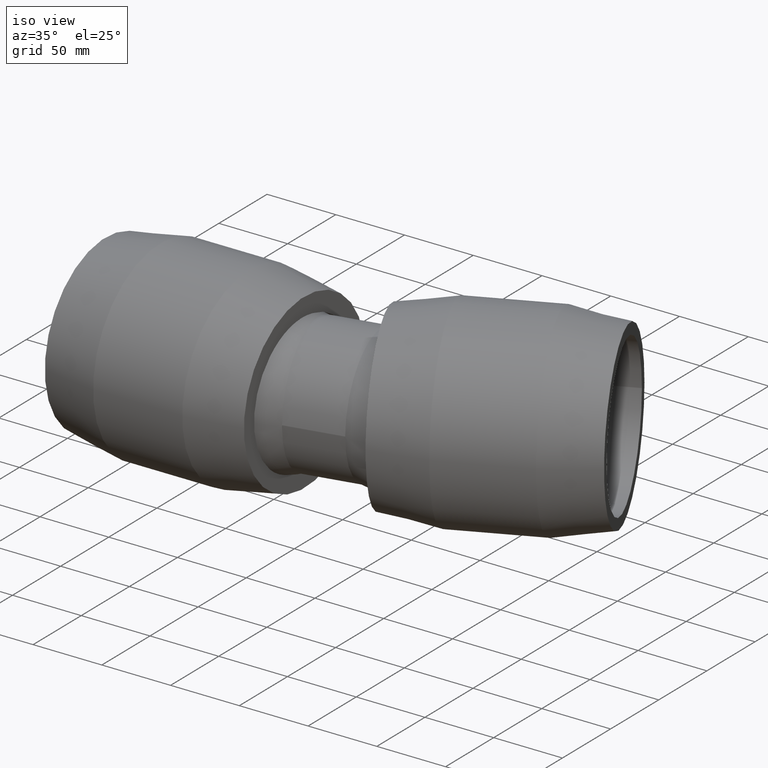
[diagram: clean part render]
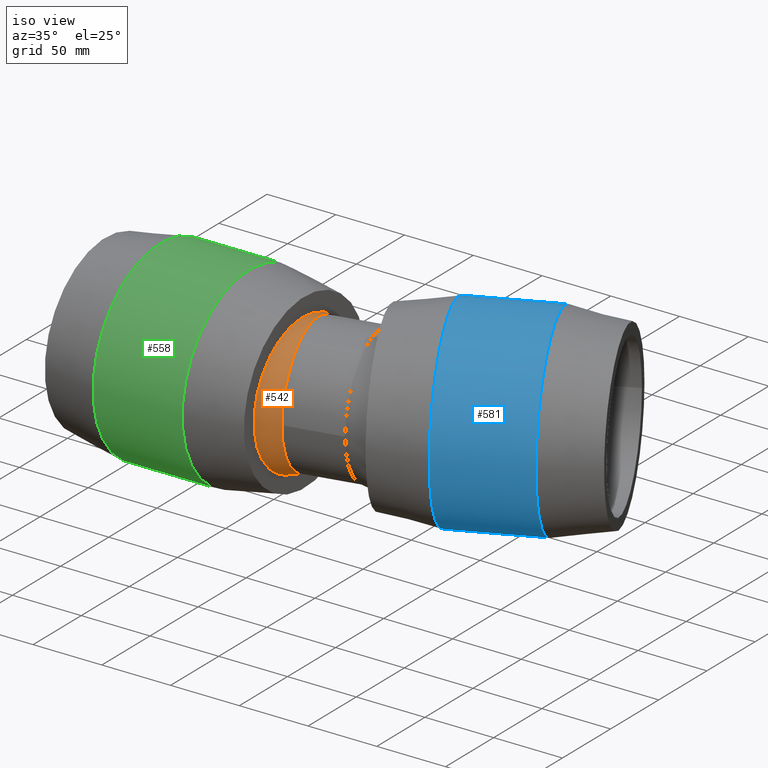
[diagram: same view with three faces highlighted in distinct colors, each labeled with its STEP entity id]
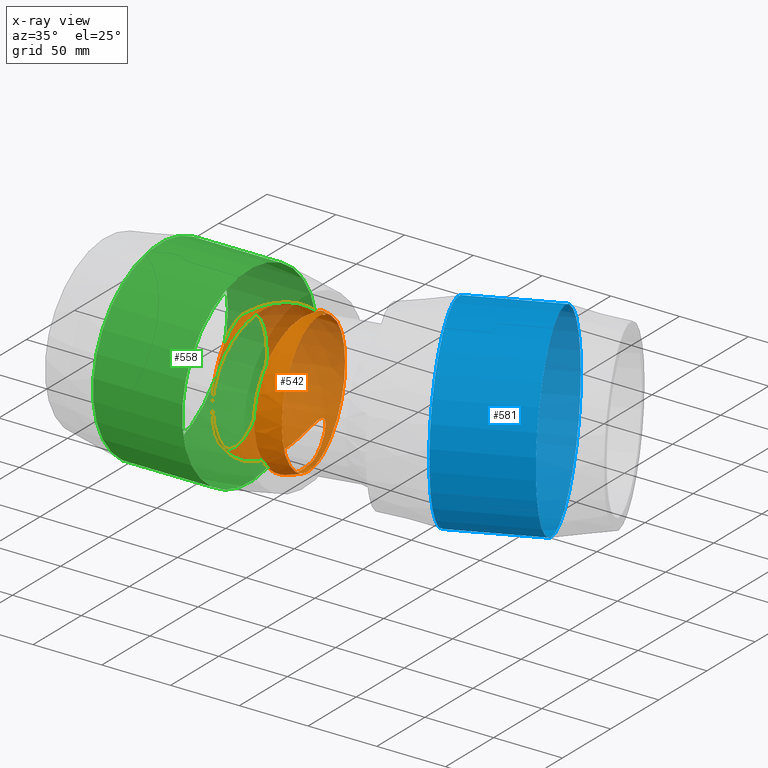
[diagram: x-ray of the same camera — body ghosted, the three highlighted faces saturated]
A machine part, iso view with three faces highlighted in distinct colors.
The next image is the same camera in x-ray (body ghosted, the three faces saturated) — at least one of them is partly hidden behind the body in this view.
Their STEP definitions:

[orange] entity #542 — the highlighted spherical surface has radius 51.344 mm.
#64=FACE_BOUND('',#166,.T.);
#114=FACE_OUTER_BOUND('',#165,.T.);
#165=EDGE_LOOP('',(#432,#433,#434,#435));
#166=EDGE_LOOP('',(#436));
#265=B_SPLINE_CURVE_WITH_KNOTS('',3,(#1027,#1028,#1029,#1030,#1031,#1032,
#1033,#1034,#1035,#1036,#1037,#1038,#1039,#1040,#1041,#1042,#1043,#1044,
#1045,#1046,#1047,#1048,#1049,#1050,#1051,#1052,#1053,#1054,#1055,#1056,
#1057,#1058,#1059,#1060,#1061,#1062,#1063,#1064,#1065,#1066,#1067,#1068,
#1069,#1070,#1071,#1072,#1073,#1074,#1075,#1076,#1077,#1078,#1079,#1080,
#1081,#1082,#1083,#1084,#1085,#1086,#1087,#1088,#1089),.UNSPECIFIED.,.F.,
 .F.,(4,2,2,2,2,2,2,2,2,2,3,2,2,2,2,2,2,2,2,2,2,2,2,2,2,2,2,2,2,2,4),(-3.30851037801907,
-3.28968480181947,-2.40979252966525,-1.6720922541475,-0.934391978629748,
-0.680389936424923,-0.426387894220106,-0.233471961970231,-0.116735980985119,
-0.0583679904925631,0.,0.0583679904925535,0.116735980985107,0.233471961970214,
0.426387894220085,0.680389936424906,0.934391978629727,1.67209225414748,
2.40979252966524,3.28968480181945,4.16957707397367,5.04946934612788,5.9293616182821,
6.63560045389003,7.34183928949796,8.04807812510589,8.75431696071383,9.4548744696161,
10.1554319785184,10.8559894874207,11.5565469963229),.UNSPECIFIED.);
#266=B_SPLINE_CURVE_WITH_KNOTS('',3,(#1092,#1093,#1094,#1095,#1096,#1097,
#1098,#1099,#1100,#1101,#1102,#1103,#1104,#1105,#1106,#1107,#1108,#1109,
#1110,#1111,#1112,#1113,#1114,#1115,#1116,#1117,#1118,#1119,#1120,#1121,
#1122,#1123,#1124,#1125,#1126,#1127,#1128,#1129,#1130,#1131,#1132,#1133,
#1134,#1135,#1136,#1137,#1138,#1139,#1140,#1141,#1142,#1143,#1144,#1145,
#1146,#1147,#1148,#1149,#1150,#1151,#1152,#1153),.UNSPECIFIED.,.F.,.F.,
(4,2,2,2,2,2,2,2,2,2,2,2,2,2,2,2,2,2,2,2,2,2,2,2,2,2,2,2,2,2,4),(11.5565469963229,
12.2571045052252,12.9576620141275,13.6582195230298,14.358777031932,15.06501586754,
15.7712547031479,16.4774935387558,17.1837323743638,18.063624646518,18.9435169186722,
19.8234091908264,20.7033014629806,21.4410017384984,22.1787020140161,22.4327040562209,
22.6867060984258,22.8796220306757,22.9963580116607,23.0547260021533,23.1130939926458,
23.1714619831384,23.2298299736309,23.3465659546161,23.5394818868659,23.7934839290708,
24.0474859712756,24.7851862467933,25.5228865223111,26.4027787944653,26.4216043706735),
 .UNSPECIFIED.);
#274=CIRCLE('',#598,41.681967453828);
#275=CIRCLE('',#599,49.9835908268743);
#276=CIRCLE('',#600,48.161967453828);
#323=VERTEX_POINT('',#1024);
#324=VERTEX_POINT('',#1026);
#325=VERTEX_POINT('',#1090);
#326=VERTEX_POINT('',#1154);
#376=EDGE_CURVE('',#323,#323,#274,.T.);
#377=EDGE_CURVE('',#324,#323,#265,.T.);
#378=EDGE_CURVE('',#325,#324,#275,.T.);
#379=EDGE_CURVE('',#323,#325,#266,.T.);
#380=EDGE_CURVE('',#326,#326,#276,.T.);
#432=ORIENTED_EDGE('',*,*,#376,.F.);
#433=ORIENTED_EDGE('',*,*,#377,.F.);
#434=ORIENTED_EDGE('',*,*,#378,.F.);
#435=ORIENTED_EDGE('',*,*,#379,.F.);
#436=ORIENTED_EDGE('',*,*,#380,.T.);
#540=SPHERICAL_SURFACE('',#597,51.3440263239376);
#542=ADVANCED_FACE('',(#114,#64),#540,.T.);
#597=AXIS2_PLACEMENT_3D('',#1023,#701,#702);
#598=AXIS2_PLACEMENT_3D('',#1025,#703,#704);
#599=AXIS2_PLACEMENT_3D('',#1091,#705,#706);
#600=AXIS2_PLACEMENT_3D('',#1155,#707,#708);
#701=DIRECTION('center_axis',(0.,0.,1.));
#702=DIRECTION('ref_axis',(1.,0.,0.));
#703=DIRECTION('center_axis',(-0.978147600733806,-0.20791169081776,0.));
#704=DIRECTION('ref_axis',(0.20791169081776,-0.978147600733806,0.));
#705=DIRECTION('center_axis',(-1.,-1.83697019872103E-16,0.));
#706=DIRECTION('ref_axis',(0.,0.,1.));
#707=DIRECTION('center_axis',(-0.978147600733806,-0.20791169081776,0.));
#708=DIRECTION('ref_axis',(0.20791169081776,-0.978147600733806,0.));
#1023=CARTESIAN_POINT('Origin',(60.6590593560478,-2.49561397405026,0.));
#1024=CARTESIAN_POINT('',(40.,-49.5,0.));
#1025=CARTESIAN_POINT('Origin',(31.3338316700638,-8.72888354117357,0.));
#1026=CARTESIAN_POINT('',(72.4,8.39097377968063,48.7836197819382));
#1027=CARTESIAN_POINT('Ctrl Pts',(72.4,8.39097377968063,48.7836197819382));
#1028=CARTESIAN_POINT('Ctrl Pts',(72.3864500201985,8.45472142263795,48.7726549375301));
#1029=CARTESIAN_POINT('Ctrl Pts',(72.3728863221512,8.51842324838326,48.7615693236608));
#1030=CARTESIAN_POINT('Ctrl Pts',(71.7247144296909,11.5572638656852,48.2266078084189));
#1031=CARTESIAN_POINT('Ctrl Pts',(71.0601398841781,14.4295187630104,47.4359439953391));
#1032=CARTESIAN_POINT('Ctrl Pts',(69.79639182757,19.3483973782541,45.6245991545693));
#1033=CARTESIAN_POINT('Ctrl Pts',(69.1317114648829,21.7336316149281,44.5488383720133));
#1034=CARTESIAN_POINT('Ctrl Pts',(67.6723950436625,26.2613695283844,42.0391507792162));
#1035=CARTESIAN_POINT('Ctrl Pts',(66.8784475342787,28.4040888636781,40.6052127183003));
#1036=CARTESIAN_POINT('Ctrl Pts',(65.7368695430582,30.8605992055764,38.7105254568418));
#1037=CARTESIAN_POINT('Ctrl Pts',(65.3992919767922,31.5349089440416,38.164461323344));
#1038=CARTESIAN_POINT('Ctrl Pts',(64.6596322785791,32.8302257801769,37.0560773076257));
#1039=CARTESIAN_POINT('Ctrl Pts',(64.2569739163476,33.4511228403933,36.4940134588498));
#1040=CARTESIAN_POINT('Ctrl Pts',(63.5183622155816,34.3917349163212,35.6057640761962));
#1041=CARTESIAN_POINT('Ctrl Pts',(63.0977221583261,34.8535641802537,35.1527292167637));
#1042=CARTESIAN_POINT('Ctrl Pts',(62.42012509077,35.4010782588731,34.5991303179625));
#1043=CARTESIAN_POINT('Ctrl Pts',(62.1139442933544,35.6087687376838,34.3847977815056));
#1044=CARTESIAN_POINT('Ctrl Pts',(61.600376308243,35.8377098244398,34.1455814995889));
#1045=CARTESIAN_POINT('Ctrl Pts',(61.4198709340975,35.9003764284018,34.0795668058151));
#1046=CARTESIAN_POINT('Ctrl Pts',(61.0465271717174,35.9862677079335,33.988857553912));
#1047=CARTESIAN_POINT('Ctrl Pts',(60.8536193243563,36.0093652132489,33.9643285954376));
#1048=CARTESIAN_POINT('Ctrl Pts',(60.6590593560477,36.0093652132489,33.9643285954376));
#1049=CARTESIAN_POINT('Ctrl Pts',(60.4644993877392,36.0093652132489,33.9643285954376));
#1050=CARTESIAN_POINT('Ctrl Pts',(60.2715915403781,35.9862677079336,33.9888575539119));
#1051=CARTESIAN_POINT('Ctrl Pts',(59.898247777998,35.9003764284018,34.0795668058151));
#1052=CARTESIAN_POINT('Ctrl Pts',(59.7177424038525,35.8377098244399,34.1455814995888));
#1053=CARTESIAN_POINT('Ctrl Pts',(59.2041744187412,35.6087687376839,34.3847977815055));
#1054=CARTESIAN_POINT('Ctrl Pts',(58.8979936213257,35.401078258873,34.5991303179625));
#1055=CARTESIAN_POINT('Ctrl Pts',(58.2203965537696,34.8535641802537,35.1527292167637));
#1056=CARTESIAN_POINT('Ctrl Pts',(57.7997564965141,34.3917349163212,35.6057640761962));
#1057=CARTESIAN_POINT('Ctrl Pts',(57.0611447957481,33.4511228403933,36.4940134588498));
#1058=CARTESIAN_POINT('Ctrl Pts',(56.6584864335165,32.8302257801769,37.0560773076257));
#1059=CARTESIAN_POINT('Ctrl Pts',(55.9188267353034,31.5349089440416,38.1644613233439));
#1060=CARTESIAN_POINT('Ctrl Pts',(55.5812491690375,30.8605992055764,38.7105254568418));
#1061=CARTESIAN_POINT('Ctrl Pts',(54.4396711778169,28.4040888636781,40.6052127183003));
#1062=CARTESIAN_POINT('Ctrl Pts',(53.6457236684333,26.2613695283844,42.0391507792162));
#1063=CARTESIAN_POINT('Ctrl Pts',(52.1864072472128,21.7336316149281,44.5488383720134));
#1064=CARTESIAN_POINT('Ctrl Pts',(51.5217268845257,19.348397378254,45.6245991545693));
#1065=CARTESIAN_POINT('Ctrl Pts',(50.2579788279176,14.4295187630104,47.4359439953391));
#1066=CARTESIAN_POINT('Ctrl Pts',(49.5934042824047,11.5572638656852,48.2266078084189));
#1067=CARTESIAN_POINT('Ctrl Pts',(48.3242152032114,5.60689272223896,49.2741190023348));
#1068=CARTESIAN_POINT('Ctrl Pts',(47.7194865517919,2.52883156474508,49.5311410344302));
#1069=CARTESIAN_POINT('Ctrl Pts',(46.5819694705229,-3.62838690513261,49.4627526058047));
#1070=CARTESIAN_POINT('Ctrl Pts',(46.0482844699517,-6.71184151201413,49.1373100014883));
#1071=CARTESIAN_POINT('Ctrl Pts',(45.0614482098478,-12.6844662209359,47.9440128486289));
#1072=CARTESIAN_POINT('Ctrl Pts',(44.6082105455073,-15.5735871718788,47.0759837554859));
#1073=CARTESIAN_POINT('Ctrl Pts',(43.8705047262049,-20.4392035442235,45.1433604354843));
#1074=CARTESIAN_POINT('Ctrl Pts',(43.5474846875478,-22.6358644806027,44.0907727555351));
#1075=CARTESIAN_POINT('Ctrl Pts',(42.9333898874893,-26.9220583418136,41.6122743637325));
#1076=CARTESIAN_POINT('Ctrl Pts',(42.6422197330911,-29.0115802401123,40.1863682194818));
#1077=CARTESIAN_POINT('Ctrl Pts',(42.1050652697745,-32.947328913444,37.0282261037509));
#1078=CARTESIAN_POINT('Ctrl Pts',(41.8587525999175,-34.7954511890737,35.2944487343533));
#1079=CARTESIAN_POINT('Ctrl Pts',(41.4180460176876,-38.1543561449819,31.6333153843155));
#1080=CARTESIAN_POINT('Ctrl Pts',(41.2236105870244,-39.6651108623783,29.7059387470811));
#1081=CARTESIAN_POINT('Ctrl Pts',(40.8896450803343,-42.2884176942533,25.8334122928519));
#1082=CARTESIAN_POINT('Ctrl Pts',(40.736154070425,-43.5110097277271,23.7306912558901));
#1083=CARTESIAN_POINT('Ctrl Pts',(40.4690425860227,-45.6577003487504,19.2802508786073));
#1084=CARTESIAN_POINT('Ctrl Pts',(40.3553765519533,-46.5818075253671,16.9325384158317));
#1085=CARTESIAN_POINT('Ctrl Pts',(40.1747157351924,-48.0581597611486,12.1238996316516));
#1086=CARTESIAN_POINT('Ctrl Pts',(40.107610909225,-48.6111189136321,9.66062754443345));
#1087=CARTESIAN_POINT('Ctrl Pts',(40.0202520233377,-49.3320506998203,4.76627531343827));
#1088=CARTESIAN_POINT('Ctrl Pts',(40.,-49.5,2.33519169634092));
#1089=CARTESIAN_POINT('Ctrl Pts',(40.,-49.5,6.66133814775094E-15));
#1090=CARTESIAN_POINT('',(72.4,8.39097377968063,-48.7836197819382));
#1091=CARTESIAN_POINT('Origin',(72.4,-2.49561397405026,0.));
#1092=CARTESIAN_POINT('Ctrl Pts',(40.,-49.5,5.55111512312578E-15));
#1093=CARTESIAN_POINT('Ctrl Pts',(40.,-49.5,-2.33519169634091));
#1094=CARTESIAN_POINT('Ctrl Pts',(40.0202520233377,-49.3320506998203,-4.76627531343826));
#1095=CARTESIAN_POINT('Ctrl Pts',(40.107610909225,-48.6111189136321,-9.66062754443344));
#1096=CARTESIAN_POINT('Ctrl Pts',(40.1747157351924,-48.0581597611486,-12.1238996316516));
#1097=CARTESIAN_POINT('Ctrl Pts',(40.3553765519532,-46.5818075253671,-16.9325384158317));
#1098=CARTESIAN_POINT('Ctrl Pts',(40.4690425860227,-45.6577003487504,-19.2802508786073));
#1099=CARTESIAN_POINT('Ctrl Pts',(40.7361540704249,-43.5110097277271,-23.7306912558901));
#1100=CARTESIAN_POINT('Ctrl Pts',(40.8896450803343,-42.2884176942533,-25.8334122928519));
#1101=CARTESIAN_POINT('Ctrl Pts',(41.2236105870244,-39.6651108623783,-29.7059387470811));
#1102=CARTESIAN_POINT('Ctrl Pts',(41.4180460176876,-38.1543561449819,-31.6333153843155));
#1103=CARTESIAN_POINT('Ctrl Pts',(41.8587525999175,-34.7954511890737,-35.2944487343533));
#1104=CARTESIAN_POINT('Ctrl Pts',(42.1050652697746,-32.9473289134439,-37.0282261037509));
#1105=CARTESIAN_POINT('Ctrl Pts',(42.6422197330912,-29.0115802401122,-40.1863682194818));
#1106=CARTESIAN_POINT('Ctrl Pts',(42.9333898874893,-26.9220583418136,-41.6122743637325));
#1107=CARTESIAN_POINT('Ctrl Pts',(43.5474846875479,-22.6358644806027,-44.0907727555351));
#1108=CARTESIAN_POINT('Ctrl Pts',(43.8705047262049,-20.4392035442235,-45.1433604354843));
#1109=CARTESIAN_POINT('Ctrl Pts',(44.6082105455074,-15.5735871718788,-47.0759837554859));
#1110=CARTESIAN_POINT('Ctrl Pts',(45.0614482098477,-12.6844662209359,-47.9440128486289));
#1111=CARTESIAN_POINT('Ctrl Pts',(46.0482844699516,-6.71184151201411,-49.1373100014883));
#1112=CARTESIAN_POINT('Ctrl Pts',(46.5819694705229,-3.6283869051326,-49.4627526058047));
#1113=CARTESIAN_POINT('Ctrl Pts',(47.7194865517919,2.5288315647451,-49.5311410344302));
#1114=CARTESIAN_POINT('Ctrl Pts',(48.3242152032114,5.60689272223898,-49.2741190023348));
#1115=CARTESIAN_POINT('Ctrl Pts',(49.5934042824047,11.5572638656852,-48.2266078084189));
#1116=CARTESIAN_POINT('Ctrl Pts',(50.2579788279176,14.4295187630104,-47.4359439953391));
#1117=CARTESIAN_POINT('Ctrl Pts',(51.5217268845257,19.3483973782541,-45.6245991545693));
#1118=CARTESIAN_POINT('Ctrl Pts',(52.1864072472128,21.7336316149281,-44.5488383720134));
#1119=CARTESIAN_POINT('Ctrl Pts',(53.6457236684332,26.2613695283844,-42.0391507792162));
#1120=CARTESIAN_POINT('Ctrl Pts',(54.4396711778169,28.4040888636781,-40.6052127183003));
#1121=CARTESIAN_POINT('Ctrl Pts',(55.5812491690374,30.8605992055764,-38.7105254568418));
#1122=CARTESIAN_POINT('Ctrl Pts',(55.9188267353034,31.5349089440416,-38.164461323344));
#1123=CARTESIAN_POINT('Ctrl Pts',(56.6584864335165,32.8302257801769,-37.0560773076257));
#1124=CARTESIAN_POINT('Ctrl Pts',(57.0611447957481,33.4511228403933,-36.4940134588499));
#1125=CARTESIAN_POINT('Ctrl Pts',(57.7997564965141,34.3917349163212,-35.6057640761962));
#1126=CARTESIAN_POINT('Ctrl Pts',(58.2203965537698,34.8535641802537,-35.1527292167638));
#1127=CARTESIAN_POINT('Ctrl Pts',(58.8979936213259,35.401078258873,-34.5991303179625));
#1128=CARTESIAN_POINT('Ctrl Pts',(59.2041744187413,35.6087687376839,-34.3847977815055));
#1129=CARTESIAN_POINT('Ctrl Pts',(59.7177424038526,35.8377098244399,-34.1455814995889));
#1130=CARTESIAN_POINT('Ctrl Pts',(59.8982477779981,35.9003764284019,-34.079566805815));
#1131=CARTESIAN_POINT('Ctrl Pts',(60.2715915403781,35.9862677079336,-33.9888575539119));
#1132=CARTESIAN_POINT('Ctrl Pts',(60.4644993877393,36.0093652132489,-33.9643285954376));
#1133=CARTESIAN_POINT('Ctrl Pts',(60.8536193243563,36.0093652132489,-33.9643285954376));
#1134=CARTESIAN_POINT('Ctrl Pts',(61.0465271717174,35.9862677079337,-33.9888575539118));
#1135=CARTESIAN_POINT('Ctrl Pts',(61.4198709340975,35.9003764284019,-34.0795668058149));
#1136=CARTESIAN_POINT('Ctrl Pts',(61.600376308243,35.8377098244399,-34.1455814995888));
#1137=CARTESIAN_POINT('Ctrl Pts',(62.1139442933543,35.608768737684,-34.3847977815054));
#1138=CARTESIAN_POINT('Ctrl Pts',(62.4201250907697,35.401078258873,-34.5991303179625));
#1139=CARTESIAN_POINT('Ctrl Pts',(63.0977221583259,34.8535641802537,-35.1527292167638));
#1140=CARTESIAN_POINT('Ctrl Pts',(63.5183622155815,34.3917349163212,-35.6057640761962));
#1141=CARTESIAN_POINT('Ctrl Pts',(64.2569739163476,33.4511228403933,-36.4940134588499));
#1142=CARTESIAN_POINT('Ctrl Pts',(64.6596322785791,32.8302257801769,-37.0560773076257));
#1143=CARTESIAN_POINT('Ctrl Pts',(65.3992919767922,31.5349089440416,-38.164461323344));
#1144=CARTESIAN_POINT('Ctrl Pts',(65.7368695430583,30.8605992055764,-38.7105254568418));
#1145=CARTESIAN_POINT('Ctrl Pts',(66.8784475342788,28.4040888636781,-40.6052127183003));
#1146=CARTESIAN_POINT('Ctrl Pts',(67.6723950436624,26.2613695283844,-42.0391507792162));
#1147=CARTESIAN_POINT('Ctrl Pts',(69.1317114648829,21.733631614928,-44.5488383720134));
#1148=CARTESIAN_POINT('Ctrl Pts',(69.79639182757,19.3483973782541,-45.6245991545693));
#1149=CARTESIAN_POINT('Ctrl Pts',(71.0601398841781,14.4295187630104,-47.4359439953391));
#1150=CARTESIAN_POINT('Ctrl Pts',(71.724714429691,11.5572638656852,-48.2266078084189));
#1151=CARTESIAN_POINT('Ctrl Pts',(72.3728863221575,8.51842324835432,-48.7615693236659));
#1152=CARTESIAN_POINT('Ctrl Pts',(72.3864500202045,8.45472142260957,-48.772654937535));
#1153=CARTESIAN_POINT('Ctrl Pts',(72.4,8.39097377968063,-48.7836197819382));
#1154=CARTESIAN_POINT('',(88.0778598272792,-45.9055024773856,0.));
#1155=CARTESIAN_POINT('Origin',(78.0644237408439,1.20401043419586,0.));

[blue] entity #581 — the highlighted cylindrical surface (bore or boss wall) has radius 70 mm, axis along (0.9135, 0.4067, 0).
#60=CYLINDRICAL_SURFACE('',#672,70.);
#101=FACE_BOUND('',#242,.T.);
#153=FACE_OUTER_BOUND('',#241,.T.);
#241=EDGE_LOOP('',(#516));
#242=EDGE_LOOP('',(#517));
#310=CIRCLE('',#673,70.);
#311=CIRCLE('',#674,70.);
#362=VERTEX_POINT('',#1399);
#363=VERTEX_POINT('',#1401);
#418=EDGE_CURVE('',#362,#362,#310,.T.);
#419=EDGE_CURVE('',#363,#363,#311,.T.);
#516=ORIENTED_EDGE('',*,*,#418,.T.);
#517=ORIENTED_EDGE('',*,*,#419,.F.);
#581=ADVANCED_FACE('',(#153,#101),#60,.T.);
#672=AXIS2_PLACEMENT_3D('',#1398,#851,#852);
#673=AXIS2_PLACEMENT_3D('',#1400,#853,#854);
#674=AXIS2_PLACEMENT_3D('',#1402,#855,#856);
#851=DIRECTION('center_axis',(0.913545457642601,0.4067366430758,1.19788532833232E-16));
#852=DIRECTION('ref_axis',(-0.4067366430758,0.913545457642601,-2.54618386665283E-17));
#853=DIRECTION('center_axis',(0.913545457642601,0.4067366430758,1.19788532833232E-16));
#854=DIRECTION('ref_axis',(1.19788532833232E-16,2.54618386665284E-17,-1.));
#855=DIRECTION('center_axis',(0.913545457642601,0.4067366430758,1.19788532833232E-16));
#856=DIRECTION('ref_axis',(1.19788532833232E-16,2.54618386665284E-17,-1.));
#1398=CARTESIAN_POINT('Origin',(189.924331818538,40.3696629488248,1.18893214514498E-14));
#1399=CARTESIAN_POINT('',(131.853893975612,91.1395777481509,6.22584428099613E-15));
#1400=CARTESIAN_POINT('Origin',(160.325458990918,27.1913957131689,8.00817298765311E-15));
#1401=CARTESIAN_POINT('',(191.051639630852,117.496112219463,1.39881412085896E-14));
#1402=CARTESIAN_POINT('Origin',(219.523204646158,53.5479301844807,1.57704699152465E-14));

[green] entity #558 — the highlighted cylindrical surface (bore or boss wall) has radius 70 mm, axis along (1, 0, 0).
#52=CYLINDRICAL_SURFACE('',#628,70.);
#78=FACE_BOUND('',#196,.T.);
#130=FACE_OUTER_BOUND('',#195,.T.);
#195=EDGE_LOOP('',(#467));
#196=EDGE_LOOP('',(#468));
#289=CIRCLE('',#629,70.);
#290=CIRCLE('',#630,70.);
#340=VERTEX_POINT('',#1265);
#341=VERTEX_POINT('',#1267);
#395=EDGE_CURVE('',#340,#340,#289,.T.);
#396=EDGE_CURVE('',#341,#341,#290,.T.);
#467=ORIENTED_EDGE('',*,*,#395,.F.);
#468=ORIENTED_EDGE('',*,*,#396,.T.);
#558=ADVANCED_FACE('',(#130,#78),#52,.T.);
#628=AXIS2_PLACEMENT_3D('',#1264,#763,#764);
#629=AXIS2_PLACEMENT_3D('',#1266,#765,#766);
#630=AXIS2_PLACEMENT_3D('',#1268,#767,#768);
#763=DIRECTION('center_axis',(1.,1.83697019872103E-16,0.));
#764=DIRECTION('ref_axis',(-1.68112701893672E-16,1.,0.));
#765=DIRECTION('center_axis',(1.,1.83697019872103E-16,0.));
#766=DIRECTION('ref_axis',(0.,0.,-1.));
#767=DIRECTION('center_axis',(1.,1.83697019872103E-16,0.));
#768=DIRECTION('ref_axis',(0.,0.,-1.));
#1264=CARTESIAN_POINT('Origin',(0.,1.32996642387403E-14,0.));
#1265=CARTESIAN_POINT('',(32.4,70.,0.));
#1266=CARTESIAN_POINT('Origin',(32.4,1.92514476825964E-14,0.));
#1267=CARTESIAN_POINT('',(-32.4,70.,0.));
#1268=CARTESIAN_POINT('Origin',(-32.4,7.34788079488412E-15,0.));